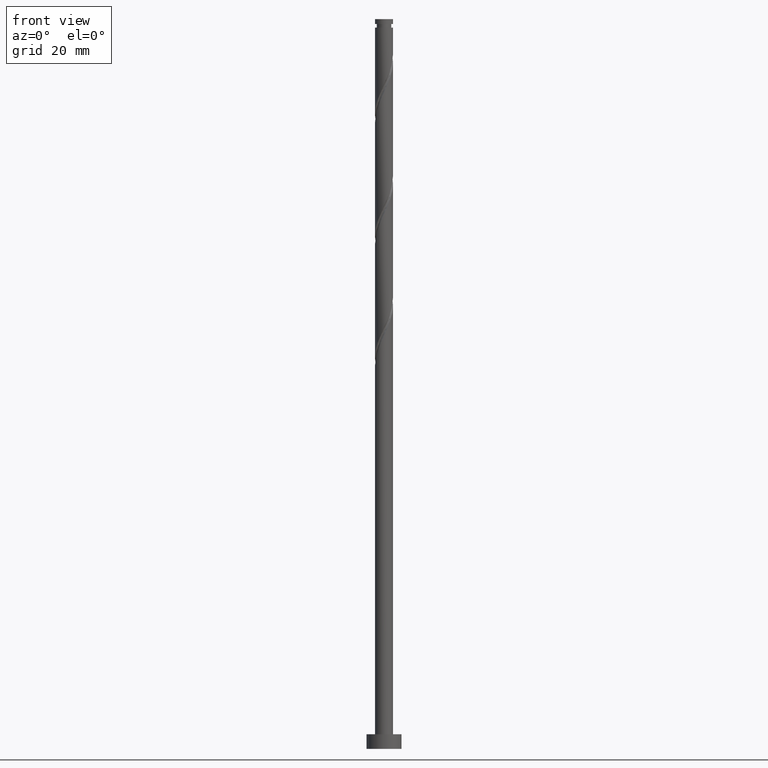
[diagram: clean part render]
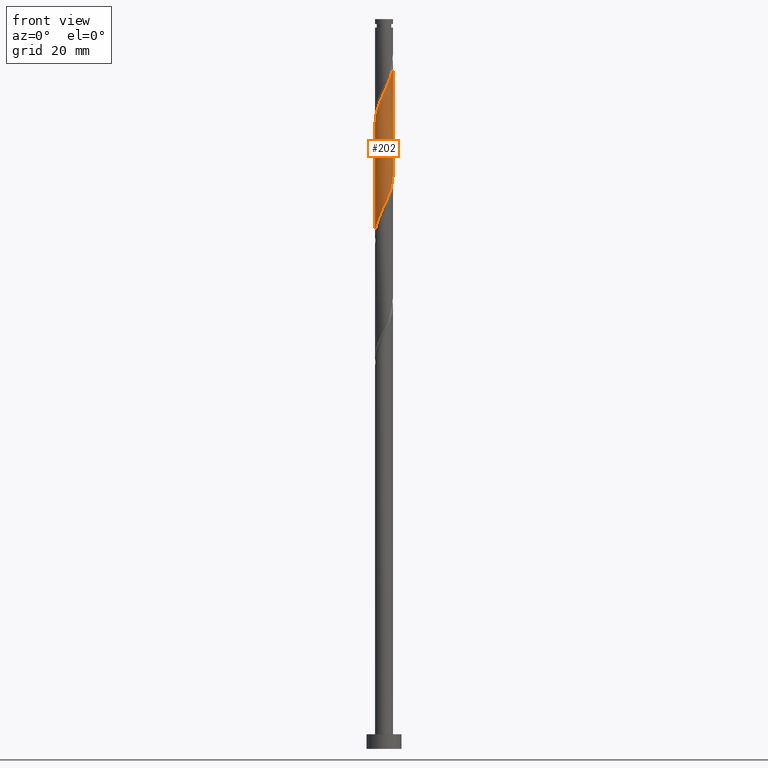
[diagram: same view with one face highlighted and labeled with its STEP entity id]
A machine part, front view. The second image highlights one B-rep face of the part: STEP entity #202.
In plain terms, the highlighted cylindrical surface (edge-blend (fillet) strip) has radius 3.1 mm, axis along (-0, -0, -1).
Its self-contained STEP definition (entity closure, byte-faithful):
#13 = DIRECTION ( 'NONE',  ( -1.000000000000000000, 0.000000000000000000, 0.000000000000000000 ) ) ;
#44 = CARTESIAN_POINT ( 'NONE',  ( 2.476317086136644807, -1.864900450133398335, 231.0701600525219988 ) ) ;
#47 = CARTESIAN_POINT ( 'NONE',  ( 3.099999999999999645, 4.112883096653824131E-15, 196.3403896207215382 ) ) ;
#49 =( BOUNDED_CURVE ( )  B_SPLINE_CURVE ( 2, ( #1257, #1055, #780, #1162, #306, #1146, #176, #741, #750, #1293, #1696, #53, #599, #1731, #579, #452, #1590, #1580, #1560, #882, #333, #195, #44, #891, #758, #995, #619, #205, #1817 ),
 .UNSPECIFIED., .F., .T. ) 
 B_SPLINE_CURVE_WITH_KNOTS ( ( 3, 2, 2, 2, 2, 2, 2, 2, 2, 2, 2, 2, 2, 2, 3 ),
 ( 0.5545271625973833274, 0.5576923076923077094, 0.5673076923076922906, 0.5769230769230768718, 0.5865384615384615641, 0.5961538461538461453, 0.6057692307692308376, 0.6153846153846154188, 0.6250000000000000000, 0.6346153846153845812, 0.6442307692307691624, 0.6538461538461538547, 0.6634615384615384359, 0.6730769230769231282, 0.6795271625973833274 ),
 .UNSPECIFIED. ) 
 CURVE ( )  GEOMETRIC_REPRESENTATION_ITEM ( )  RATIONAL_B_SPLINE_CURVE ( ( 0.9061636035682938406, 0.9069090390690826009, 0.9090909090909391477, 0.9024626128164425776, 0.9090909090909391477, 0.9024626128164425776, 0.9090909090909391477, 0.9024626128164425776, 0.9090909090909391477, 0.9024626128164425776, 0.9090909090909391477, 0.9024626128164425776, 0.9090909090909391477, 0.9024626128164425776, 0.9090909090909391477, 0.9024626128164425776, 0.9090909090909391477, 0.9024626128164425776, 0.9090909090909391477, 0.9024626128164425776, 0.9090909090909391477, 0.9024626128164425776, 0.9090909090909391477, 0.9024626128164425776, 0.9090909090909391477, 0.9024626128164425776, 0.9090909090909391477, 0.9046444828382991243, 0.9061636035682938406 ) ) 
 REPRESENTATION_ITEM ( '' )  );
#53 = CARTESIAN_POINT ( 'NONE',  ( -1.227034829342573019, -2.871596876557151123, 222.2560574884194580 ) ) ;
#58 = FACE_OUTER_BOUND ( 'NONE', #1777, .T. ) ;
#80 = CARTESIAN_POINT ( 'NONE',  ( 3.100000000000005418, -1.301166652395925986E-15, 235.3512125356045033 ) ) ;
#94 = CARTESIAN_POINT ( 'NONE',  ( 2.420982992632351394, -1.972441239494201248, 191.8073395397015020 ) ) ;
#104 = CARTESIAN_POINT ( 'NONE',  ( -3.100000000000004974, -3.365086169989463498E-15, 214.5178792022711320 ) ) ;
#113 = CARTESIAN_POINT ( 'NONE',  ( -0.2480122259768793302, -3.112904275694726053, 185.3970831294451216 ) ) ;
#126 = CARTESIAN_POINT ( 'NONE',  ( 2.149790266979321185, -2.233473037222740931, 191.0060574884194580 ) ) ;
#176 = CARTESIAN_POINT ( 'NONE',  ( -2.621826352477054645, -1.654093884112052271, 218.2496472320091812 ) ) ;
#189 = ORIENTED_EDGE ( 'NONE', *, *, #1736, .T. ) ;
#195 = CARTESIAN_POINT ( 'NONE',  ( 2.249877174969360460, -2.165579781819279237, 230.2688780012399548 ) ) ;
#202 = ADVANCED_FACE ( 'NONE', ( #58 ), #1028, .T. ) ;
#205 = CARTESIAN_POINT ( 'NONE',  ( 3.100000000000004974, -0.2518949594648405843, 234.8115117982560776 ) ) ;
#269 = CARTESIAN_POINT ( 'NONE',  ( -1.326007432615845527, -2.802089272069598014, 182.9932369755989612 ) ) ;
#304 = ORIENTED_EDGE ( 'NONE', *, *, #1553, .F. ) ;
#306 = CARTESIAN_POINT ( 'NONE',  ( -2.941491420319850114, -0.9785848068434026548, 216.6470831294451500 ) ) ;
#308 = CARTESIAN_POINT ( 'NONE',  ( 0.000000000000000000, 0.000000000000000000, 250.0000000000000000 ) ) ;
#333 = CARTESIAN_POINT ( 'NONE',  ( 1.958059922082859172, -2.403331300826604178, 229.4675959499579392 ) ) ;
#369 = EDGE_CURVE ( 'NONE', #1555, #920, #49, .T. ) ;
#381 = CARTESIAN_POINT ( 'NONE',  ( -2.702756997303925157, -1.564221118447513215, 178.9868267191886844 ) ) ;
#390 = CARTESIAN_POINT ( 'NONE',  ( 1.878597541326289866, -2.494504834951285499, 190.2047754371374424 ) ) ;
#412 = CARTESIAN_POINT ( 'NONE',  ( 1.552816185334429333, -2.683050855754215647, 189.4034933858553416 ) ) ;
#424 = ORIENTED_EDGE ( 'NONE', *, *, #1836, .F. ) ;
#452 = CARTESIAN_POINT ( 'NONE',  ( 0.2480122259768770543, -3.112904275694731826, 225.4611856935476339 ) ) ;
#471 = LINE ( 'NONE', #580, #1085 ) ;
#530 = CARTESIAN_POINT ( 'NONE',  ( -1.958059922082856952, -2.403331300826598849, 181.3906728730347879 ) ) ;
#554 = CARTESIAN_POINT ( 'NONE',  ( -3.059332338079530089, -0.5004854095583951556, 176.5829805653425524 ) ) ;
#570 = DIRECTION ( 'NONE',  ( -0.000000000000000000, -0.000000000000000000, -1.000000000000000000 ) ) ;
#579 = CARTESIAN_POINT ( 'NONE',  ( -0.1280745435953581091, -3.097353210611097918, 224.6599036422655900 ) ) ;
#580 = CARTESIAN_POINT ( 'NONE',  ( 3.100000000000000089, 3.796405077356794918E-16, 250.0000000000000000 ) ) ;
#599 = CARTESIAN_POINT ( 'NONE',  ( -0.8655980712550831457, -2.976699511042307567, 223.0573395397014735 ) ) ;
#613 = CARTESIAN_POINT ( 'NONE',  ( 3.099999999999999645, 4.112883096653824131E-15, 196.3403896207215382 ) ) ;
#619 = CARTESIAN_POINT ( 'NONE',  ( 3.059332338079534974, -0.5004854095583980422, 234.2752882576501747 ) ) ;
#650 = CARTESIAN_POINT ( 'NONE',  ( -3.099999999999998757, -0.2518949594648476897, 176.0467570247365359 ) ) ;
#657 =( BOUNDED_CURVE ( )  B_SPLINE_CURVE ( 2, ( #613, #1653, #1065, #1365, #1356, #937, #1215, #94, #126, #390, #412, #953, #963, #794, #1788, #113, #1230, #661, #269, #1800, #530, #1633, #679, #381, #1644, #1810, #554, #650, #1205 ),
 .UNSPECIFIED., .F., .T. ) 
 B_SPLINE_CURVE_WITH_KNOTS ( ( 3, 2, 2, 2, 2, 2, 2, 2, 2, 2, 2, 2, 2, 2, 3 ),
 ( 0.5545271625973834384, 0.5576923076923077094, 0.5673076923076922906, 0.5769230769230768718, 0.5865384615384615641, 0.5961538461538461453, 0.6057692307692307265, 0.6153846153846154188, 0.6250000000000000000, 0.6346153846153845812, 0.6442307692307692735, 0.6538461538461538547, 0.6634615384615384359, 0.6730769230769231282, 0.6795271625973831053 ),
 .UNSPECIFIED. ) 
 CURVE ( )  GEOMETRIC_REPRESENTATION_ITEM ( )  RATIONAL_B_SPLINE_CURVE ( ( 0.9061636035682865131, 0.9069090390690751624, 0.9090909090909315982, 0.9024626128164350281, 0.9090909090909315982, 0.9024626128164350281, 0.9090909090909315982, 0.9024626128164350281, 0.9090909090909315982, 0.9024626128164350281, 0.9090909090909315982, 0.9024626128164350281, 0.9090909090909315982, 0.9024626128164350281, 0.9090909090909315982, 0.9024626128164350281, 0.9090909090909315982, 0.9024626128164350281, 0.9090909090909315982, 0.9024626128164350281, 0.9090909090909315982, 0.9024626128164350281, 0.9090909090909315982, 0.9024626128164350281, 0.9090909090909315982, 0.9024626128164350281, 0.9090909090909315982, 0.9046444828382917969, 0.9061636035682862911 ) ) 
 REPRESENTATION_ITEM ( '' )  );
#661 = CARTESIAN_POINT ( 'NONE',  ( -0.9857721960353348356, -2.963095724305272238, 183.7945190268809768 ) ) ;
#679 = CARTESIAN_POINT ( 'NONE',  ( -2.476317086136642143, -1.864900450133393450, 179.7881087704707568 ) ) ;
#741 = CARTESIAN_POINT ( 'NONE',  ( -2.420982992632356723, -1.972441239494201470, 219.0509292832912536 ) ) ;
#750 = CARTESIAN_POINT ( 'NONE',  ( -2.149790266979325626, -2.233473037222744484, 219.8522113345732976 ) ) ;
#758 = CARTESIAN_POINT ( 'NONE',  ( 2.850659702190538436, -1.218088363915763805, 232.6727241550861436 ) ) ;
#780 = CARTESIAN_POINT ( 'NONE',  ( -3.090207698699935168, -0.2462039376120586376, 215.0445190268809199 ) ) ;
#794 = CARTESIAN_POINT ( 'NONE',  ( 0.5041613131675897197, -3.081802145527458237, 186.9996472320092096 ) ) ;
#858 = VERTEX_POINT ( 'NONE', #1200 ) ;
#882 = CARTESIAN_POINT ( 'NONE',  ( 1.666242669196356774, -2.641082819833930451, 228.6663138986758668 ) ) ;
#891 = CARTESIAN_POINT ( 'NONE',  ( 2.702756997303928266, -1.564221118447518100, 231.8714421038040143 ) ) ;
#920 = VERTEX_POINT ( 'NONE', #80 ) ;
#937 = CARTESIAN_POINT ( 'NONE',  ( 2.822669712321746793, -1.335746528729901739, 193.4099036422656184 ) ) ;
#953 = CARTESIAN_POINT ( 'NONE',  ( 1.227034829342569244, -2.871596876557147571, 188.6022113345732976 ) ) ;
#963 = CARTESIAN_POINT ( 'NONE',  ( 0.8655980712550801481, -2.976699511042302237, 187.8009292832912251 ) ) ;
#973 = LINE ( 'NONE', #1111, #1782 ) ;
#995 = CARTESIAN_POINT ( 'NONE',  ( 2.998562407077147274, -0.8719556093840112876, 233.4740062063681023 ) ) ;
#1028 = CYLINDRICAL_SURFACE ( 'NONE', #1072, 3.100000000000000089 ) ;
#1055 = CARTESIAN_POINT ( 'NONE',  ( -3.100000000000005418, -0.1232967040439826023, 214.7820501179041059 ) ) ;
#1065 = CARTESIAN_POINT ( 'NONE',  ( 3.090207698699929395, -0.2462039376120615797, 195.8137497961117504 ) ) ;
#1072 = AXIS2_PLACEMENT_3D ( 'NONE', #308, #570, #13 ) ;
#1085 = VECTOR ( 'NONE', #1720, 1000.000000000000000 ) ;
#1111 = CARTESIAN_POINT ( 'NONE',  ( -3.100000000000000089, 0.000000000000000000, 250.0000000000000000 ) ) ;
#1146 = CARTESIAN_POINT ( 'NONE',  ( -2.822669712321751234, -1.335746528729903071, 217.4483651807270519 ) ) ;
#1162 = CARTESIAN_POINT ( 'NONE',  ( -3.060313128317948994, -0.6214230849569027937, 215.8458010781629923 ) ) ;
#1200 = CARTESIAN_POINT ( 'NONE',  ( -3.099999999999999645, -5.384137871983187194E-15, 175.5070562873882523 ) ) ;
#1205 = CARTESIAN_POINT ( 'NONE',  ( -3.099999999999999645, -5.384137871983187194E-15, 175.5070562873882523 ) ) ;
#1215 = CARTESIAN_POINT ( 'NONE',  ( 2.621826352477048871, -1.654093884112051382, 192.6086215909835744 ) ) ;
#1230 = CARTESIAN_POINT ( 'NONE',  ( -0.6168922110061065833, -3.037999999999998924, 184.5958010781630207 ) ) ;
#1257 = CARTESIAN_POINT ( 'NONE',  ( -3.100000000000004974, -3.365086169989463498E-15, 214.5178792022711320 ) ) ;
#1293 = CARTESIAN_POINT ( 'NONE',  ( -1.878597541326294751, -2.494504834951287275, 220.6534933858553131 ) ) ;
#1356 = CARTESIAN_POINT ( 'NONE',  ( 2.941491420319844341, -0.9785848068434037650, 194.2111856935476624 ) ) ;
#1365 = CARTESIAN_POINT ( 'NONE',  ( 3.060313128317944109, -0.6214230849569032378, 195.0124677448296495 ) ) ;
#1380 = ORIENTED_EDGE ( 'NONE', *, *, #369, .F. ) ;
#1547 = VERTEX_POINT ( 'NONE', #47 ) ;
#1553 = EDGE_CURVE ( 'NONE', #1547, #858, #657, .T. ) ;
#1555 = VERTEX_POINT ( 'NONE', #104 ) ;
#1560 = CARTESIAN_POINT ( 'NONE',  ( 1.326007432615845305, -2.802089272069604231, 227.8650318473937659 ) ) ;
#1580 = CARTESIAN_POINT ( 'NONE',  ( 0.9857721960353340585, -2.963095724305278011, 227.0637497961117219 ) ) ;
#1590 = CARTESIAN_POINT ( 'NONE',  ( 0.6168922110061061392, -3.038000000000004697, 226.2624677448296779 ) ) ;
#1633 = CARTESIAN_POINT ( 'NONE',  ( -2.249877174969357796, -2.165579781819274352, 180.5893908217527724 ) ) ;
#1644 = CARTESIAN_POINT ( 'NONE',  ( -2.850659702190533551, -1.218088363915760253, 178.1855446679065835 ) ) ;
#1653 = CARTESIAN_POINT ( 'NONE',  ( 3.099999999999999201, -0.1232967040439896661, 196.0762187050885927 ) ) ;
#1685 = DIRECTION ( 'NONE',  ( -0.000000000000000000, -0.000000000000000000, -1.000000000000000000 ) ) ;
#1696 = CARTESIAN_POINT ( 'NONE',  ( -1.552816185334434218, -2.683050855754219199, 221.4547754371373856 ) ) ;
#1720 = DIRECTION ( 'NONE',  ( -0.000000000000000000, -0.000000000000000000, -1.000000000000000000 ) ) ;
#1731 = CARTESIAN_POINT ( 'NONE',  ( -0.5041613131675932724, -3.081802145527462677, 223.8586215909835460 ) ) ;
#1736 = EDGE_CURVE ( 'NONE', #1555, #858, #973, .T. ) ;
#1777 = EDGE_LOOP ( 'NONE', ( #424, #1380, #189, #304 ) ) ;
#1782 = VECTOR ( 'NONE', #1685, 1000.000000000000000 ) ;
#1788 = CARTESIAN_POINT ( 'NONE',  ( 0.1280745435953551115, -3.097353210611092145, 186.1983651807271372 ) ) ;
#1800 = CARTESIAN_POINT ( 'NONE',  ( -1.666242669196356552, -2.641082819833925566, 182.1919549243168888 ) ) ;
#1810 = CARTESIAN_POINT ( 'NONE',  ( -2.998562407077144165, -0.8719556093840072908, 177.3842626166245395 ) ) ;
#1817 = CARTESIAN_POINT ( 'NONE',  ( 3.100000000000005418, -1.301166652395925986E-15, 235.3512125356045033 ) ) ;
#1836 = EDGE_CURVE ( 'NONE', #920, #1547, #471, .T. ) ;